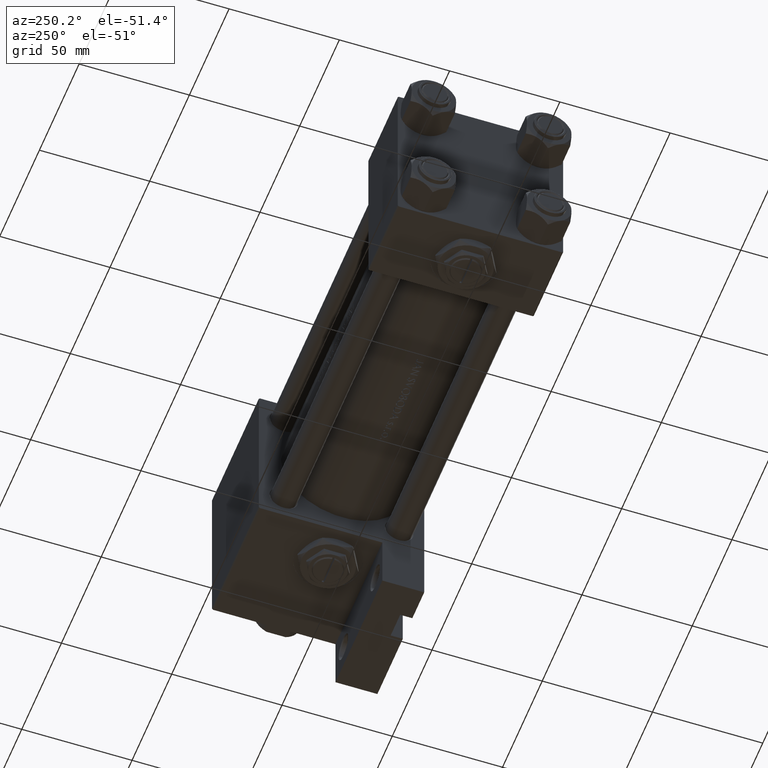
[diagram: clean part render]
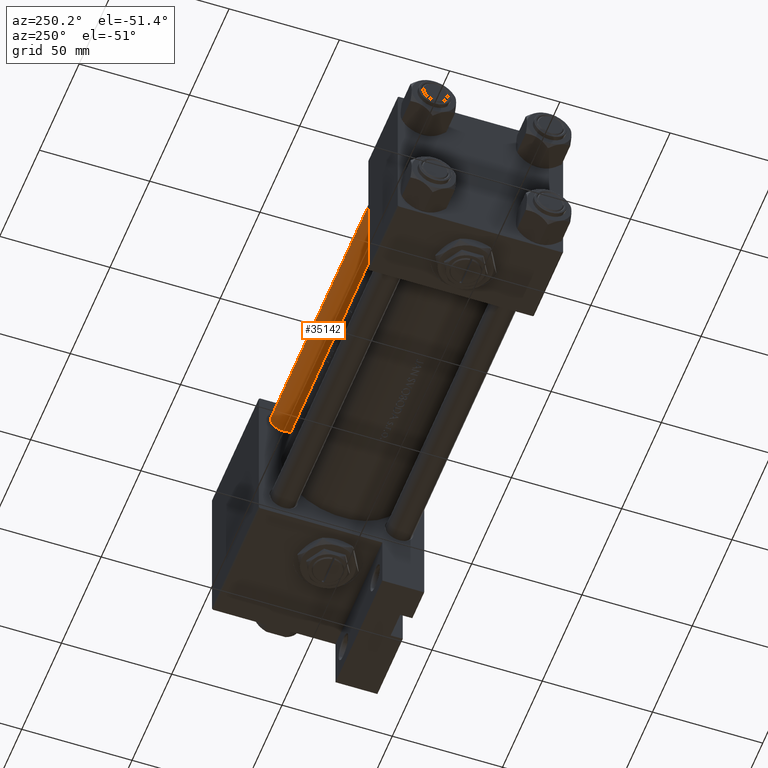
[diagram: same view with one face highlighted and labeled with its STEP entity id]
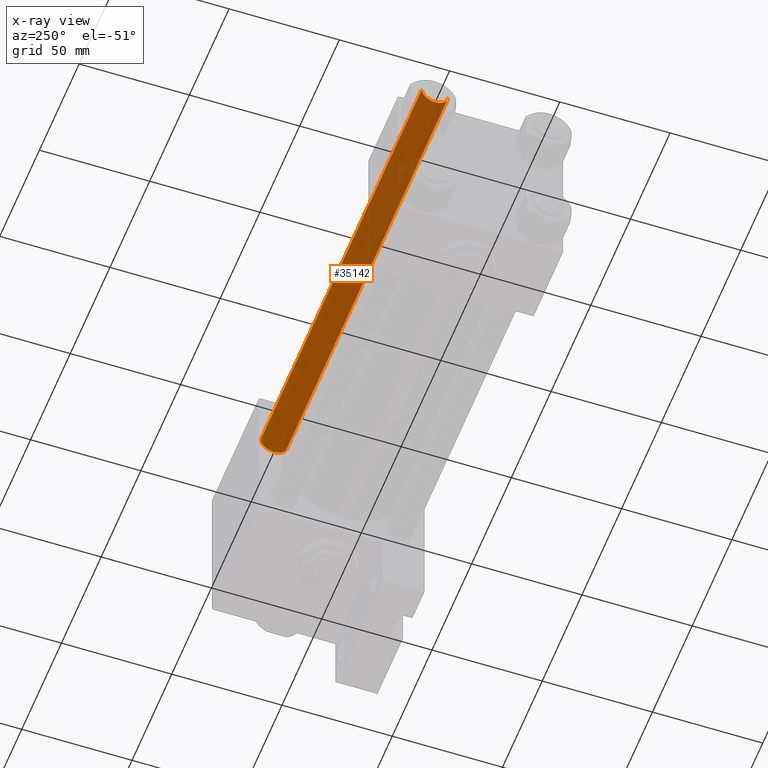
[diagram: x-ray of the same camera — body ghosted, the highlighted face saturated]
A machine part, auxiliary view. The second image highlights one B-rep face of the part: STEP entity #35142.
The next image is the same camera in x-ray: the body ghosted, the highlighted face saturated — about 18% of this face is hidden behind the body in this view.
In plain terms, the highlighted cylindrical surface (edge-blend (fillet) strip) has radius 6 mm, axis along (1, -0, 0).
Its self-contained STEP definition (entity closure, byte-faithful):
#1390 = DIRECTION ( 'NONE',  ( 0.000000000000000000, 0.000000000000000000, -1.000000000000000000 ) ) ;
#2164 = AXIS2_PLACEMENT_3D ( 'NONE', #13624, #47320, #47069 ) ;
#2604 = VERTEX_POINT ( 'NONE', #40346 ) ;
#3112 = EDGE_CURVE ( 'NONE', #2604, #9743, #15352, .T. ) ;
#5957 = CARTESIAN_POINT ( 'NONE',  ( 6.000000000000000888, 7.347880794884120722E-16, 204.0000000000000000 ) ) ;
#7185 = VECTOR ( 'NONE', #8108, 1000.000000000000000 ) ;
#7374 = AXIS2_PLACEMENT_3D ( 'NONE', #16442, #1390, #20482 ) ;
#8108 = DIRECTION ( 'NONE',  ( -0.000000000000000000, -0.000000000000000000, -1.000000000000000000 ) ) ;
#9314 = EDGE_CURVE ( 'NONE', #35616, #16671, #32843, .T. ) ;
#9743 = VERTEX_POINT ( 'NONE', #12054 ) ;
#11352 = CIRCLE ( 'NONE', #7374, 6.000000000000000888 ) ;
#12054 = CARTESIAN_POINT ( 'NONE',  ( -6.000000000000000888, 0.000000000000000000, 0.5000000000000281997 ) ) ;
#13208 = CARTESIAN_POINT ( 'NONE',  ( 6.000000000000000888, 7.347880794884120722E-16, 0.5000000000000281997 ) ) ;
#13624 = CARTESIAN_POINT ( 'NONE',  ( 0.000000000000000000, 0.000000000000000000, 0.5000000000000281997 ) ) ;
#14446 = EDGE_CURVE ( 'NONE', #16671, #9743, #34267, .T. ) ;
#15352 = LINE ( 'NONE', #27454, #7185 ) ;
#16442 = CARTESIAN_POINT ( 'NONE',  ( 0.000000000000000000, 0.000000000000000000, 203.5000000000000000 ) ) ;
#16671 = VERTEX_POINT ( 'NONE', #13208 ) ;
#20482 = DIRECTION ( 'NONE',  ( 1.000000000000000000, 0.000000000000000000, 0.000000000000000000 ) ) ;
#21270 = DIRECTION ( 'NONE',  ( -0.000000000000000000, -0.000000000000000000, -1.000000000000000000 ) ) ;
#23118 = ORIENTED_EDGE ( 'NONE', *, *, #3112, .F. ) ;
#23304 = ORIENTED_EDGE ( 'NONE', *, *, #14446, .T. ) ;
#23972 = DIRECTION ( 'NONE',  ( -1.000000000000000000, 0.000000000000000000, 0.000000000000000000 ) ) ;
#25282 = VECTOR ( 'NONE', #21270, 1000.000000000000000 ) ;
#27454 = CARTESIAN_POINT ( 'NONE',  ( -6.000000000000000888, 0.000000000000000000, 204.0000000000000000 ) ) ;
#28743 = CYLINDRICAL_SURFACE ( 'NONE', #28832, 6.000000000000000888 ) ;
#28832 = AXIS2_PLACEMENT_3D ( 'NONE', #43555, #39778, #23972 ) ;
#32843 = LINE ( 'NONE', #5957, #25282 ) ;
#33278 = ORIENTED_EDGE ( 'NONE', *, *, #9314, .T. ) ;
#34267 = CIRCLE ( 'NONE', #2164, 6.000000000000000888 ) ;
#35142 = ADVANCED_FACE ( 'NONE', ( #36018 ), #28743, .T. ) ;
#35616 = VERTEX_POINT ( 'NONE', #42944 ) ;
#36018 = FACE_OUTER_BOUND ( 'NONE', #45402, .T. ) ;
#39778 = DIRECTION ( 'NONE',  ( -0.000000000000000000, -0.000000000000000000, -1.000000000000000000 ) ) ;
#40346 = CARTESIAN_POINT ( 'NONE',  ( -6.000000000000000888, 0.000000000000000000, 203.5000000000000000 ) ) ;
#42944 = CARTESIAN_POINT ( 'NONE',  ( 6.000000000000000888, 7.347880794884120722E-16, 203.5000000000000000 ) ) ;
#43555 = CARTESIAN_POINT ( 'NONE',  ( 0.000000000000000000, 0.000000000000000000, 204.0000000000000000 ) ) ;
#45030 = EDGE_CURVE ( 'NONE', #2604, #35616, #11352, .T. ) ;
#45402 = EDGE_LOOP ( 'NONE', ( #47625, #33278, #23304, #23118 ) ) ;
#47069 = DIRECTION ( 'NONE',  ( 1.000000000000000000, 0.000000000000000000, 0.000000000000000000 ) ) ;
#47320 = DIRECTION ( 'NONE',  ( -0.000000000000000000, -0.000000000000000000, 1.000000000000000000 ) ) ;
#47625 = ORIENTED_EDGE ( 'NONE', *, *, #45030, .T. ) ;